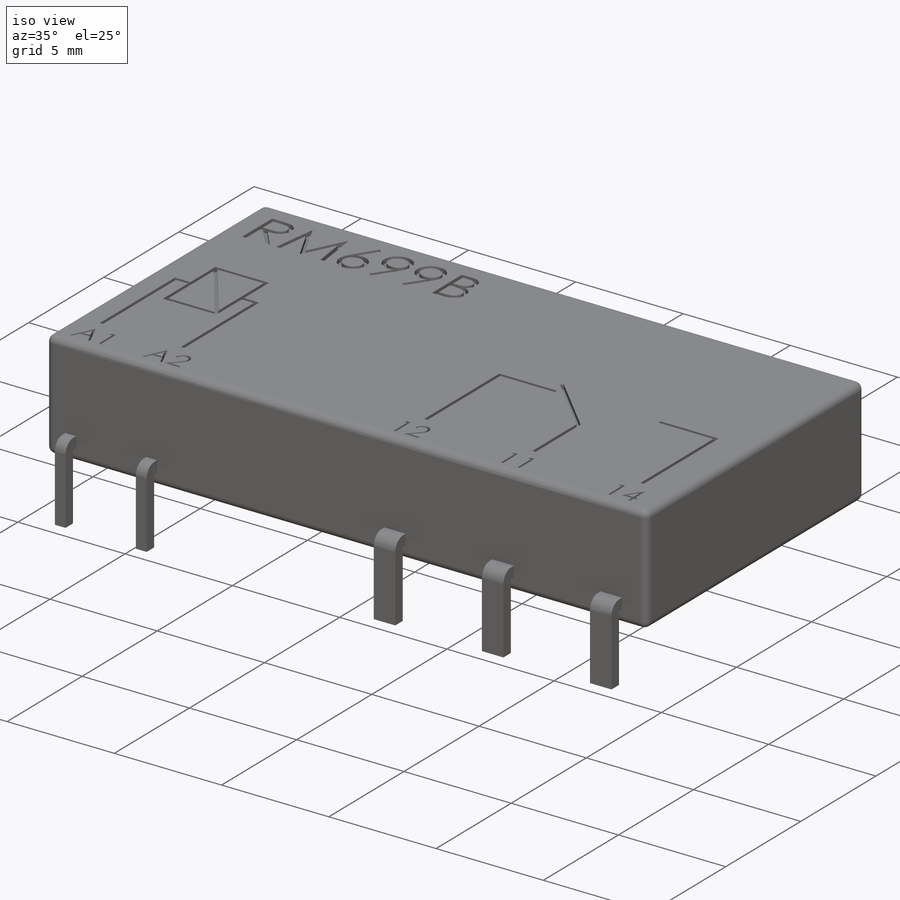
[diagram: iso view]
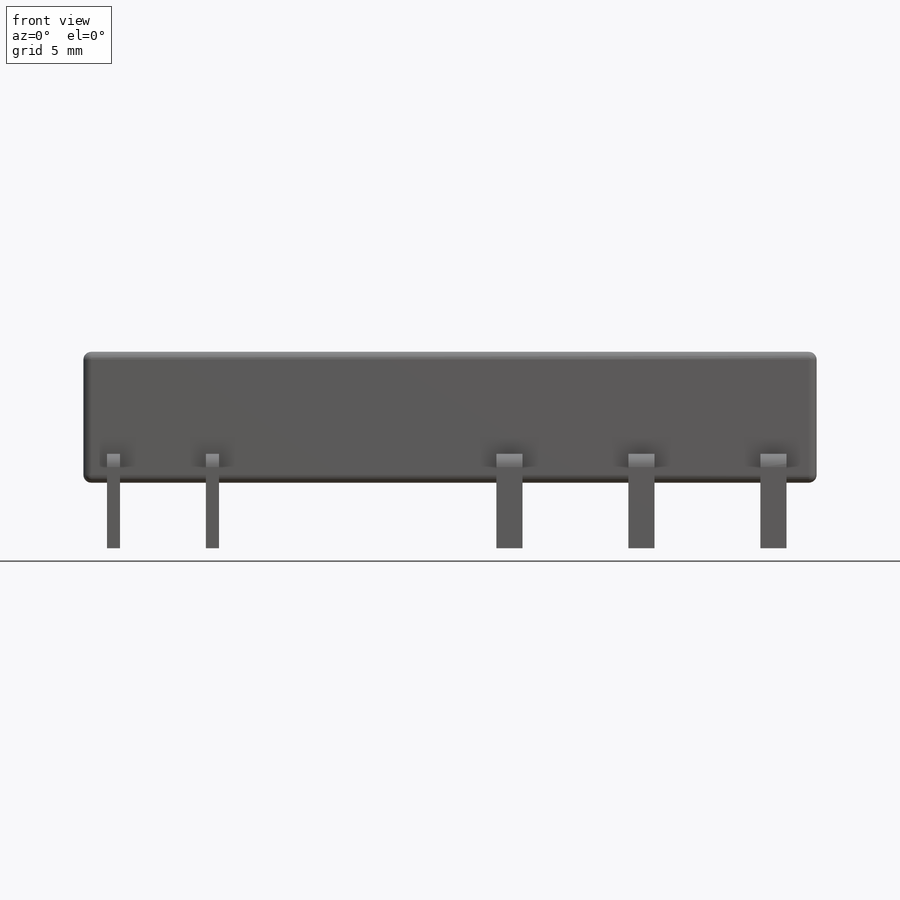
[diagram: front view]
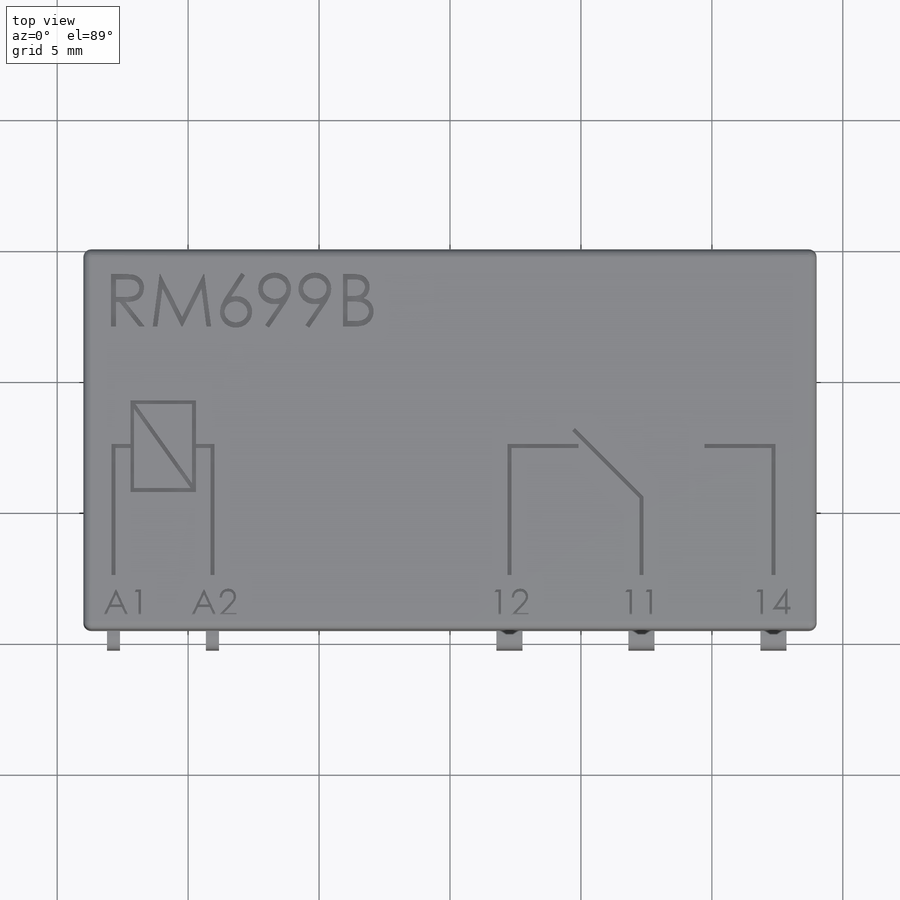
[diagram: top view]
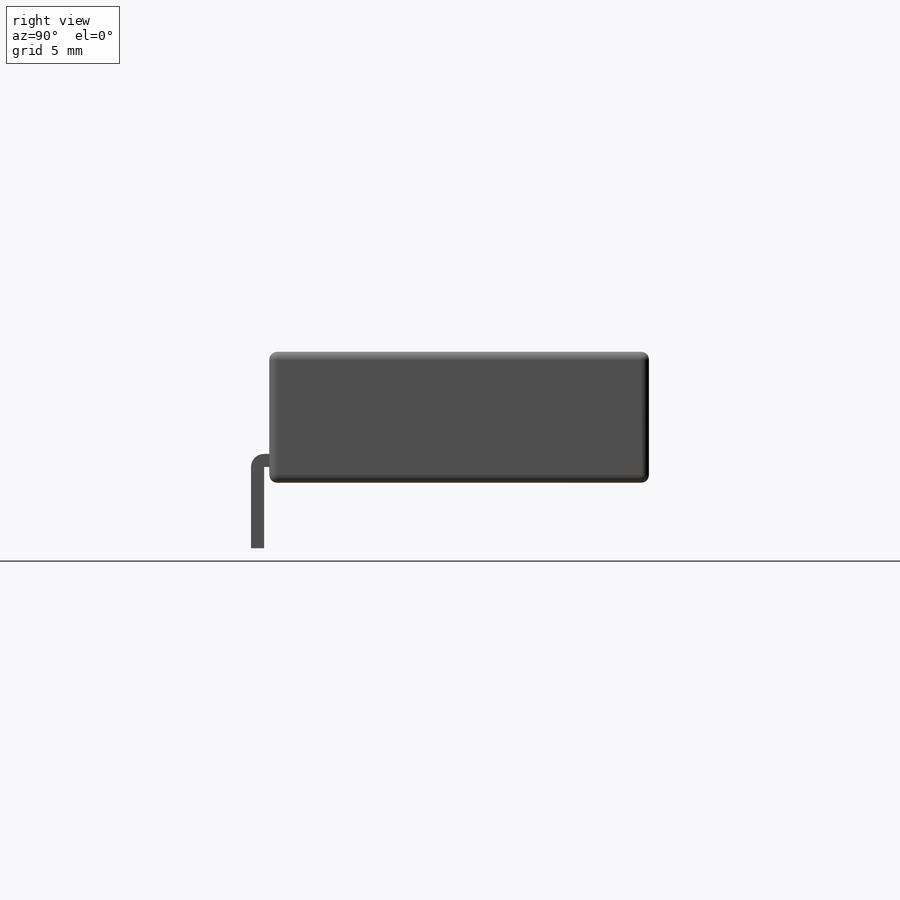
[diagram: right view]
SOLIDWORKS PART (.sldprt)
format: sldprt  version: not decoded by parser v0  size: 885,248 bytes
history: native  units: mm
features: sketch x5, extrude x3, fillet x2, cut_extrude x2, material x1, plane x1 (+12 scaffold rows collapsed)
feature tree (26):
  scaffold x12  (default folders/planes/origin — collapsed)
  material  "Material <not specified>"
  sketch  "Sketch2"  dims[D1=0.45mm D2=28.0mm D3=14.5mm D4=14.0mm]
  extrude  "Boss-Extrude1"  Depth=5mm
  plane  "Plane1"  Offset=0.6mm
  sketch  "Sketch4"  dims[c1.D1=0.5mm c1.D2=0.5mm c1.D3=0.5mm c1.D4=1.0mm c1.D5=3.78mm c1.D6=5.04mm c1.D7=5.04mm c1.D8=16.38mm c1.D9=0.25mm c1.D10=0.9mm c1.D11=1.0mm c2.D9=0.2mm c2.D2=12.85mm c3.D2=~173.71522deg]
  extrude  "Boss-Extrude2"  Depth=3.1mm
  fillet  "Fillet3"  Radius=0.3mm
  sketch  "Sketch6"
  cut_extrude  "Cut-Extrude1"  Depth=0.2mm
  sketch  "Sketch7"  dims[c1.D1=0.15mm c1.D2=0.15mm c1.D3=0.15mm c1.D4=0.15mm c1.D5=3.5mm c1.D6=2.5mm c1.D7=0.15mm c1.D8=0.15mm c1.D9=0.15mm c1.D10=5.0mm c1.D11=1.675mm c1.D12=2.5mm c1.D13=0.15mm c1.D14=~3.283617mm c2.D14=135.0deg c2.D15=3.0mm c2.D16=2.7mm c2.D17=3.7mm c2.D18=12.0mm c2.D19=13.2mm]
  cut_extrude  "Cut-Extrude2"  Depth=0.2mm
  sketch  "Sketch8"
  extrude  "Boss-Extrude3"  [1 undecoded]
  fillet  "Fillet4"  Radius=0.5mm
decode coverage: 9 of 12 modeling features carry decoded parameters
note: ~ marks probable driven/reference dimensions
note: 1 parameter value undecoded
note: suppression state not decoded; provenance and decode notes live in map.json
